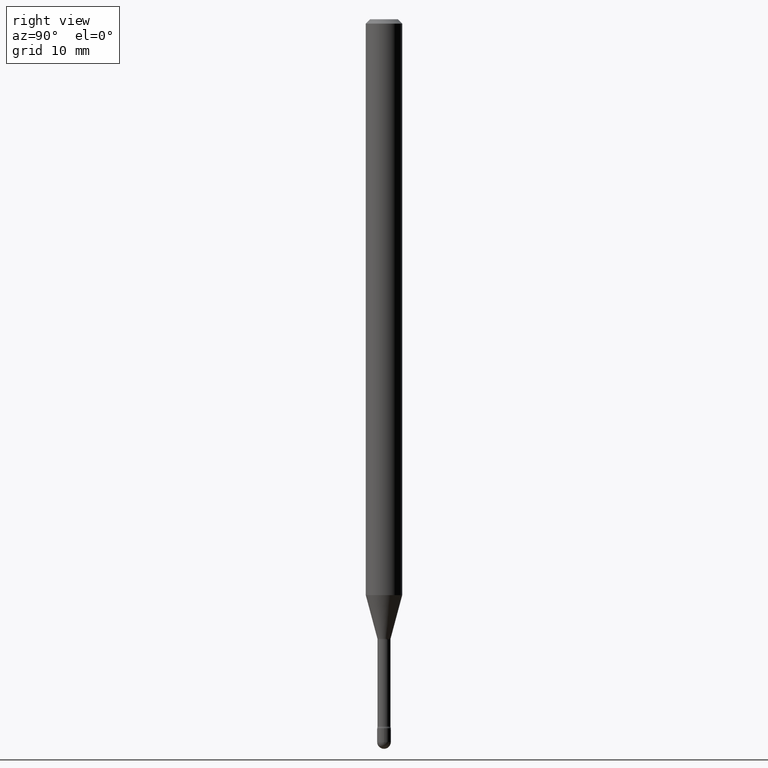
[diagram: clean part render]
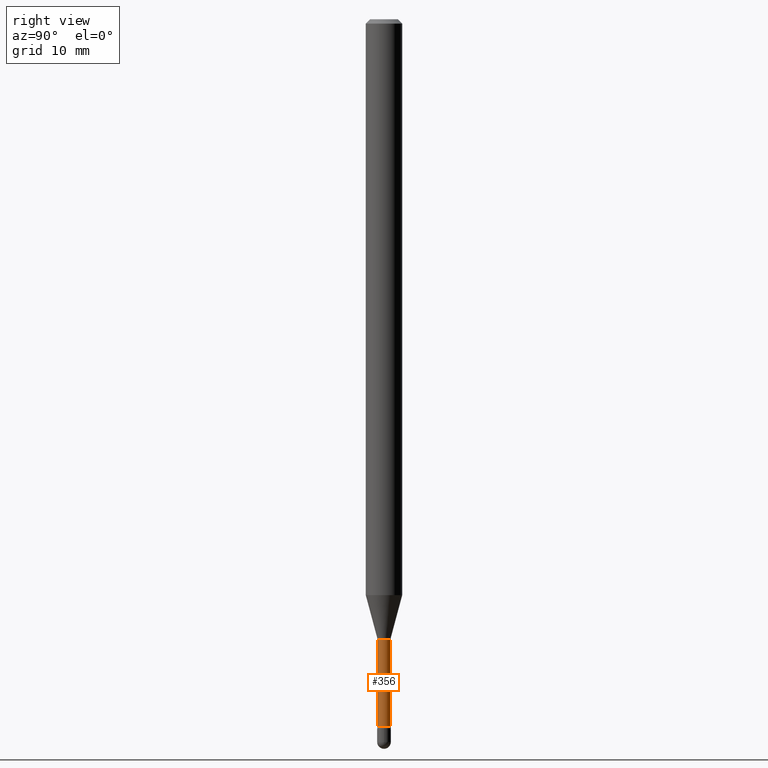
[diagram: same view with one face highlighted and labeled with its STEP entity id]
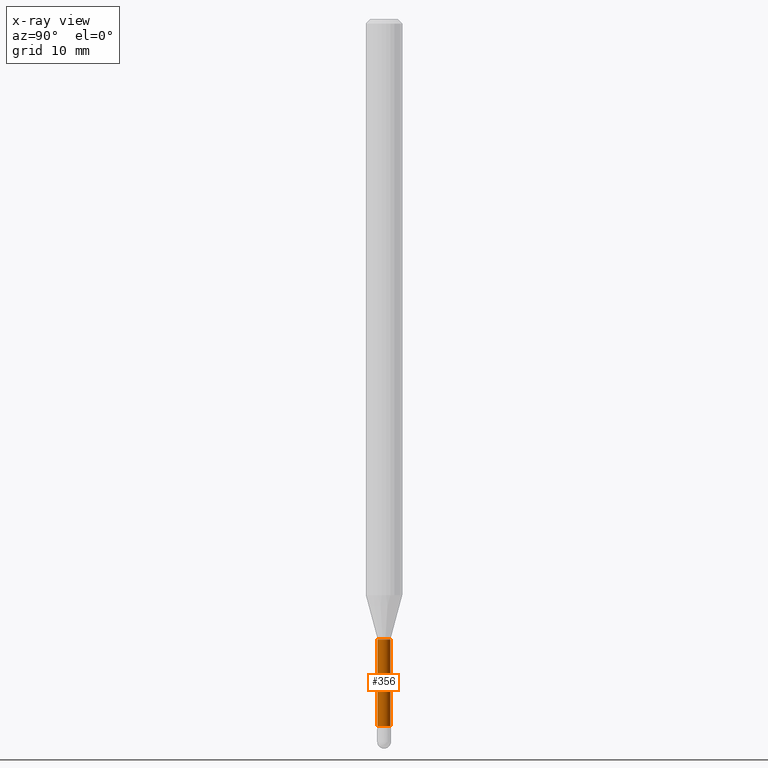
[diagram: x-ray of the same camera — body ghosted, the highlighted face saturated]
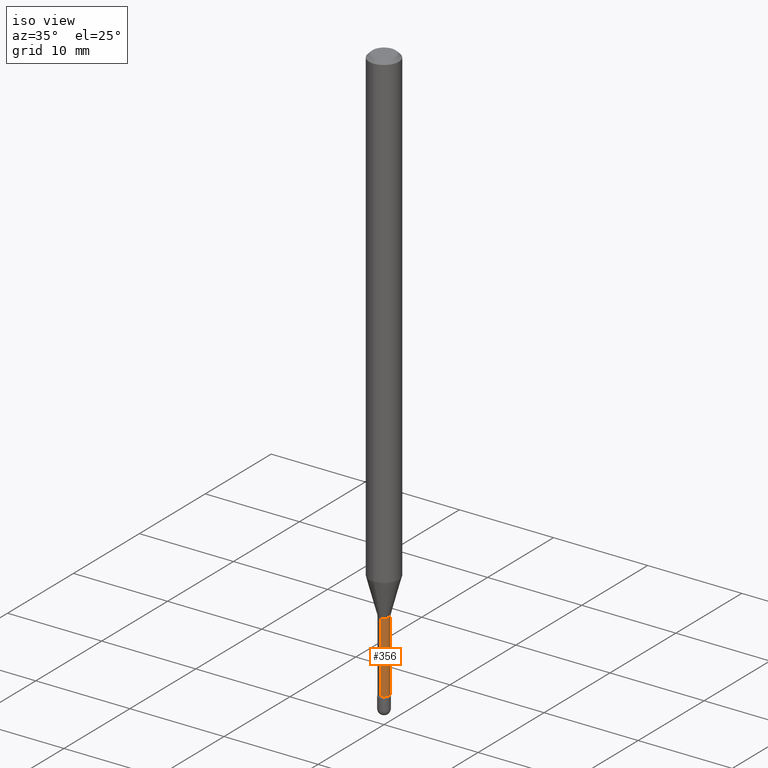
[diagram: same view with one face highlighted and labeled with its STEP entity id]
A machine part, right view. The second image highlights one B-rep face of the part: STEP entity #356.
The next image is the same camera in x-ray: the body ghosted, the highlighted face saturated — about 0% of this face is hidden behind the body in this view.
A second angle (iso view) of the same face is appended — the face is thin or edge-on in the first view.
In plain terms, the highlighted cylindrical surface (edge-blend (fillet) strip) has radius 0.5613 mm, axis along (-0, 0, 1).
Its self-contained STEP definition (entity closure, byte-faithful):
#23 = CARTESIAN_POINT ( 'NONE',  ( 1.620037437533623579E-16, 0.02209999999999160900, -2.422672283192177645 ) ) ;
#31 = LINE ( 'NONE', #514, #152 ) ;
#37 = VECTOR ( 'NONE', #305, 39.37007874015748143 ) ;
#54 = CARTESIAN_POINT ( 'NONE',  ( -1.543234751768077413E-16, -0.02210000000000852949, -2.422672283192177645 ) ) ;
#72 = AXIS2_PLACEMENT_3D ( 'NONE', #295, #462, #253 ) ;
#81 = EDGE_CURVE ( 'NONE', #380, #432, #346, .T. ) ;
#87 = ORIENTED_EDGE ( 'NONE', *, *, #156, .T. ) ;
#127 = DIRECTION ( 'NONE',  ( -2.445456806742389886E-29, 3.491498522728124281E-15, 1.000000000000000000 ) ) ;
#152 = VECTOR ( 'NONE', #127, 39.37007874015748143 ) ;
#155 = EDGE_CURVE ( 'NONE', #289, #393, #327, .T. ) ;
#156 = EDGE_CURVE ( 'NONE', #432, #393, #167, .T. ) ;
#167 = LINE ( 'NONE', #510, #37 ) ;
#176 = EDGE_CURVE ( 'NONE', #380, #289, #31, .T. ) ;
#181 = CYLINDRICAL_SURFACE ( 'NONE', #302, 0.02210000000000003975 ) ;
#184 = DIRECTION ( 'NONE',  ( -2.445456806742390166E-29, 3.491498522728124281E-15, 1.000000000000000000 ) ) ;
#186 = CARTESIAN_POINT ( 'NONE',  ( -1.543234751768145452E-16, -0.02210000000000743314, -2.125974787463811300 ) ) ;
#226 = ORIENTED_EDGE ( 'NONE', *, *, #176, .F. ) ;
#253 = DIRECTION ( 'NONE',  ( -6.982962677686265922E-15, -1.000000000000000000, 0.000000000000000000 ) ) ;
#259 = CARTESIAN_POINT ( 'NONE',  ( 1.570299446030415881E-16, 0.02209999999999258738, -2.125974787463811300 ) ) ;
#279 = DIRECTION ( 'NONE',  ( -6.982962677686265133E-15, -1.000000000000000000, 0.000000000000000000 ) ) ;
#289 = VERTEX_POINT ( 'NONE', #186 ) ;
#295 = CARTESIAN_POINT ( 'NONE',  ( 5.198979514966082173E-29, -7.422837829787135481E-15, -2.125974787463811300 ) ) ;
#302 = AXIS2_PLACEMENT_3D ( 'NONE', #484, #184, #437 ) ;
#305 = DIRECTION ( 'NONE',  ( -2.445456806742389886E-29, 3.491498522728124281E-15, 1.000000000000000000 ) ) ;
#327 = CIRCLE ( 'NONE', #72, 0.02210000000000000853 ) ;
#330 = ORIENTED_EDGE ( 'NONE', *, *, #81, .T. ) ;
#346 = CIRCLE ( 'NONE', #511, 0.02210000000000007098 ) ;
#356 = ADVANCED_FACE ( 'NONE', ( #396 ), #181, .T. ) ;
#374 = EDGE_LOOP ( 'NONE', ( #330, #87, #558, #226 ) ) ;
#380 = VERTEX_POINT ( 'NONE', #54 ) ;
#393 = VERTEX_POINT ( 'NONE', #259 ) ;
#396 = FACE_OUTER_BOUND ( 'NONE', #374, .T. ) ;
#432 = VERTEX_POINT ( 'NONE', #23 ) ;
#437 = DIRECTION ( 'NONE',  ( -6.982962677686265922E-15, -1.000000000000000000, 3.491498522728123098E-15 ) ) ;
#462 = DIRECTION ( 'NONE',  ( -2.445456806742390166E-29, 3.491498522728124281E-15, 1.000000000000000000 ) ) ;
#468 = DIRECTION ( 'NONE',  ( -2.445456806742390166E-29, 3.491498522728124281E-15, 1.000000000000000000 ) ) ;
#484 = CARTESIAN_POINT ( 'NONE',  ( -1.169113584055446105E-44, 1.669184350826100908E-30, 4.780733988912460139E-16 ) ) ;
#510 = CARTESIAN_POINT ( 'NONE',  ( 1.570299446029823989E-16, 0.02210000000000003975, 4.009112815389543820E-16 ) ) ;
#511 = AXIS2_PLACEMENT_3D ( 'NONE', #516, #468, #279 ) ;
#514 = CARTESIAN_POINT ( 'NONE',  ( -1.543234751768667580E-16, -0.02210000000000003975, 5.552355162435376952E-16 ) ) ;
#516 = CARTESIAN_POINT ( 'NONE',  ( 5.924540425438438156E-29, -8.458756697819860632E-15, -2.422672283192177645 ) ) ;
#558 = ORIENTED_EDGE ( 'NONE', *, *, #155, .F. ) ;